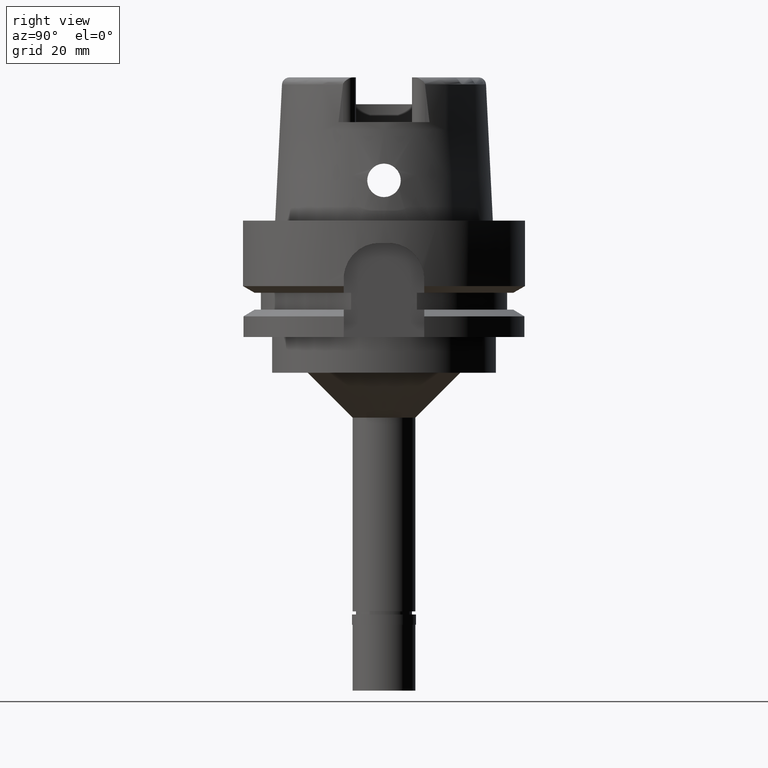
[diagram: clean part render]
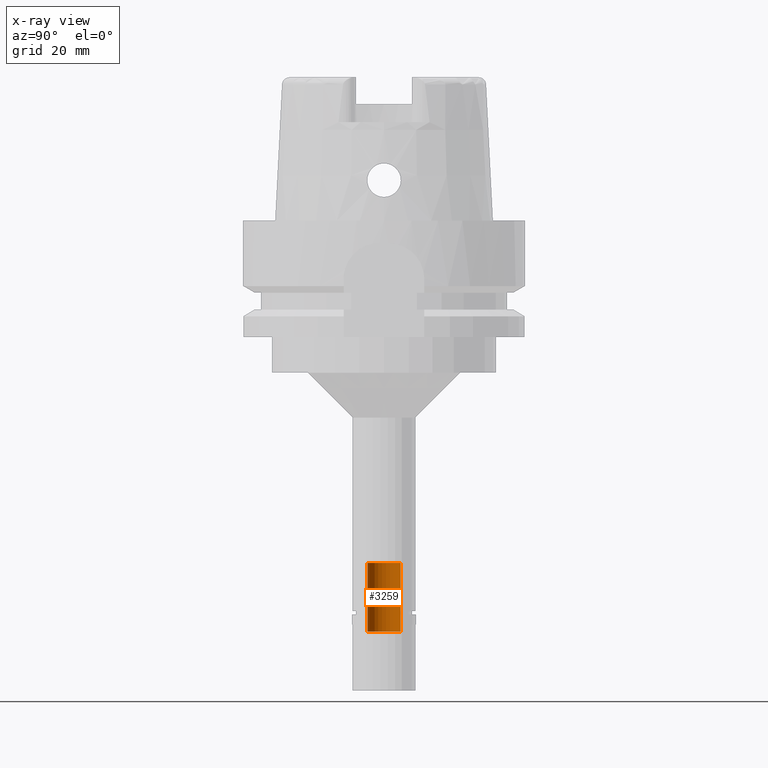
[diagram: x-ray — body ghosted, one internal face saturated and labeled with its STEP entity id]
A machine part, right view, then the same camera in x-ray: the body is ghosted and one INTERNAL B-rep face — a face not visible from any outside direction — is saturated and labeled: STEP entity #3259.
In plain terms, the highlighted cylindrical surface (edge-blend (fillet) strip) has radius 3.7 mm, axis along (0, 0, 1).
Its self-contained STEP definition (entity closure, byte-faithful):
#4 = EDGE_CURVE ( 'NONE', #4678, #5011, #2442, .T. ) ;
#169 = DIRECTION ( 'NONE',  ( 0.0000000000000000000, -1.000000000000000000, 0.0000000000000000000 ) ) ;
#198 = ORIENTED_EDGE ( 'NONE', *, *, #4861, .T. ) ;
#200 = DIRECTION ( 'NONE',  ( 0.0000000000000000000, 0.0000000000000000000, -1.000000000000000000 ) ) ;
#377 = DIRECTION ( 'NONE',  ( 0.0000000000000000000, 0.0000000000000000000, 1.000000000000000000 ) ) ;
#400 = ORIENTED_EDGE ( 'NONE', *, *, #899, .F. ) ;
#557 = EDGE_CURVE ( 'NONE', #2146, #5115, #3234, .T. ) ;
#696 = VECTOR ( 'NONE', #2697, 1000.000000000000000 ) ;
#899 = EDGE_CURVE ( 'NONE', #4678, #5115, #2778, .T. ) ;
#1023 = LINE ( 'NONE', #5212, #696 ) ;
#1489 = AXIS2_PLACEMENT_3D ( 'NONE', #2048, #377, #1690 ) ;
#1674 = ORIENTED_EDGE ( 'NONE', *, *, #4, .T. ) ;
#1683 = DIRECTION ( 'NONE',  ( 0.0000000000000000000, 0.0000000000000000000, 1.000000000000000000 ) ) ;
#1690 = DIRECTION ( 'NONE',  ( 0.0000000000000000000, 1.000000000000000000, 0.0000000000000000000 ) ) ;
#1708 = DIRECTION ( 'NONE',  ( 0.0000000000000000000, 1.000000000000000000, 0.0000000000000000000 ) ) ;
#1834 = VECTOR ( 'NONE', #4447, 1000.000000000000000 ) ;
#2048 = CARTESIAN_POINT ( 'NONE',  ( 0.0000000000000000000, 0.0000000000000000000, -107.6499999999999915 ) ) ;
#2068 = CARTESIAN_POINT ( 'NONE',  ( 0.0000000000000000000, 0.0000000000000000000, -76.50000000000000000 ) ) ;
#2146 = VERTEX_POINT ( 'NONE', #4673 ) ;
#2442 = CIRCLE ( 'NONE', #4305, 3.700000000000000178 ) ;
#2697 = DIRECTION ( 'NONE',  ( 0.0000000000000000000, 1.538526331033999949E-14, 1.000000000000000000 ) ) ;
#2778 = LINE ( 'NONE', #5318, #1834 ) ;
#2877 = CYLINDRICAL_SURFACE ( 'NONE', #1489, 3.700000000000000178 ) ;
#2910 = CARTESIAN_POINT ( 'NONE',  ( 0.0000000000000000000, -3.700000000000000178, -76.50000000000000000 ) ) ;
#3019 = CARTESIAN_POINT ( 'NONE',  ( 0.0000000000000000000, 3.700000000000000178, -91.85595815778998485 ) ) ;
#3234 = CIRCLE ( 'NONE', #3768, 3.700000000000000178 ) ;
#3259 = ADVANCED_FACE ( 'NONE', ( #3264 ), #2877, .F. ) ;
#3264 = FACE_OUTER_BOUND ( 'NONE', #4593, .T. ) ;
#3658 = ORIENTED_EDGE ( 'NONE', *, *, #557, .T. ) ;
#3768 = AXIS2_PLACEMENT_3D ( 'NONE', #2068, #1683, #1708 ) ;
#3934 = CARTESIAN_POINT ( 'NONE',  ( 0.0000000000000000000, 0.0000000000000000000, -91.85595815778998485 ) ) ;
#4305 = AXIS2_PLACEMENT_3D ( 'NONE', #3934, #200, #169 ) ;
#4447 = DIRECTION ( 'NONE',  ( 0.0000000000000000000, -1.538526331033999949E-14, 1.000000000000000000 ) ) ;
#4590 = CARTESIAN_POINT ( 'NONE',  ( 0.0000000000000000000, -3.700000000000000178, -91.85595815778998485 ) ) ;
#4593 = EDGE_LOOP ( 'NONE', ( #3658, #400, #1674, #198 ) ) ;
#4673 = CARTESIAN_POINT ( 'NONE',  ( 0.0000000000000000000, 3.700000000000000178, -76.50000000000000000 ) ) ;
#4678 = VERTEX_POINT ( 'NONE', #4590 ) ;
#4861 = EDGE_CURVE ( 'NONE', #5011, #2146, #1023, .T. ) ;
#5011 = VERTEX_POINT ( 'NONE', #3019 ) ;
#5115 = VERTEX_POINT ( 'NONE', #2910 ) ;
#5212 = CARTESIAN_POINT ( 'NONE',  ( 0.0000000000000000000, 3.700000000000000178, -91.85595815778998485 ) ) ;
#5318 = CARTESIAN_POINT ( 'NONE',  ( 0.0000000000000000000, -3.700000000000000178, -91.85595815778998485 ) ) ;